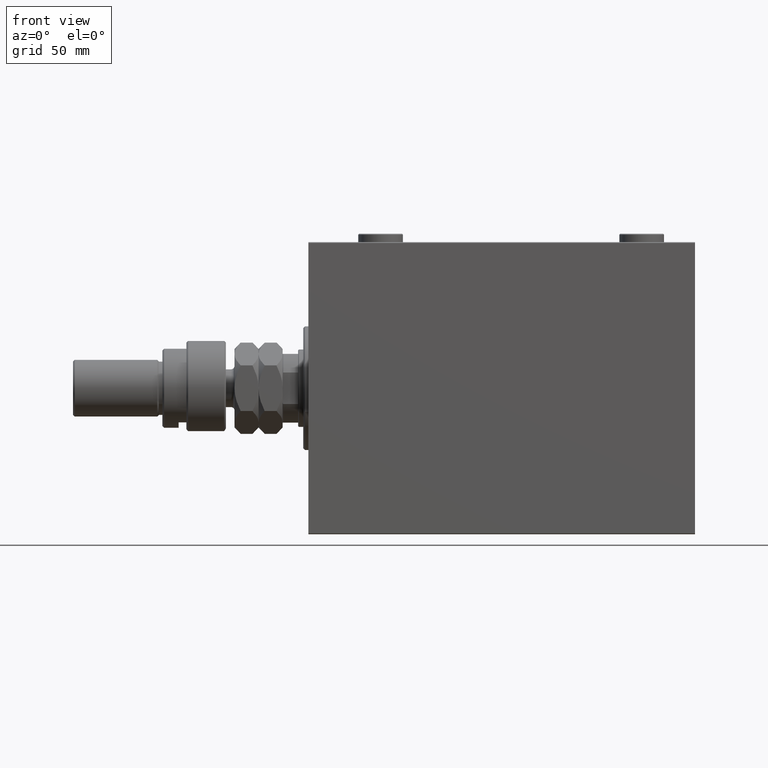
[diagram: clean part render]
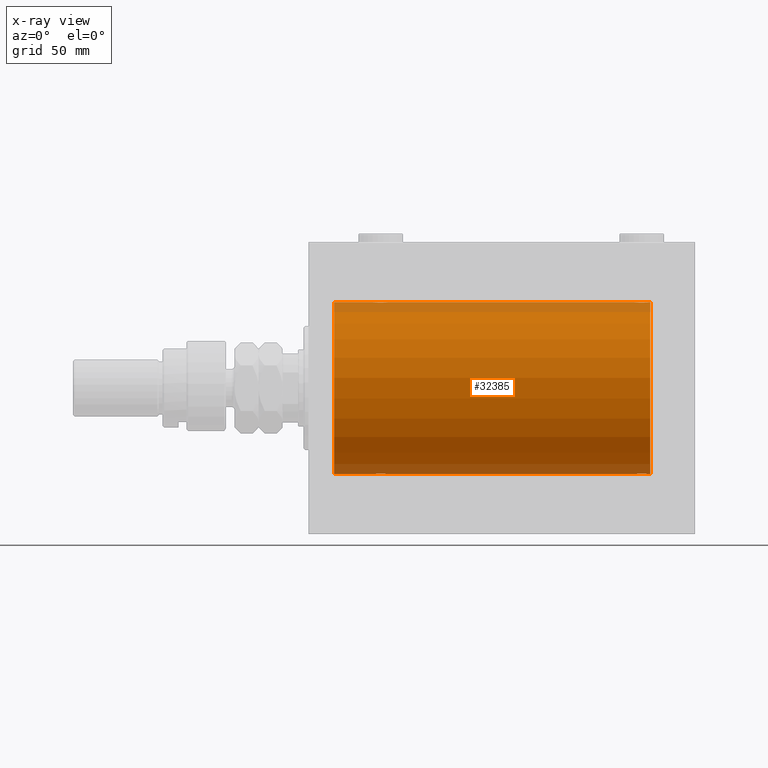
[diagram: x-ray — body ghosted, one internal face saturated and labeled with its STEP entity id]
A machine part, front view, then the same camera in x-ray: the body is ghosted and one INTERNAL B-rep face — a face not visible from any outside direction — is saturated and labeled: STEP entity #32385.
In plain terms, the highlighted cylindrical surface (partial cylindrical patch) has radius 50 mm, axis along (-1, -0, -0).
Its self-contained STEP definition (entity closure, byte-faithful):
#140 = CARTESIAN_POINT ( 'NONE',  ( 195.3671064755457678, -4.033756670430855173, 49.83713703490974467 ) ) ;
#160 = CARTESIAN_POINT ( 'NONE',  ( 38.62480015918035292, -2.597781786597455067, -49.93300953359122474 ) ) ;
#259 = CARTESIAN_POINT ( 'NONE',  ( 38.79696438048011942, -2.807099414226279510, 49.92152599098507437 ) ) ;
#504 = CARTESIAN_POINT ( 'NONE',  ( 45.68602832121950286, -2.133925816755177785, 49.95498245321557107 ) ) ;
#1246 = ORIENTED_EDGE ( 'NONE', *, *, #11767, .T. ) ;
#1705 = CARTESIAN_POINT ( 'NONE',  ( 46.25000000000000000, 3.663389736015513070E-16, 50.00000000000000000 ) ) ;
#1777 = CARTESIAN_POINT ( 'NONE',  ( 196.1313639944615375, -3.687400765141540582, -49.86408552998298660 ) ) ;
#2021 = CARTESIAN_POINT ( 'NONE',  ( 197.3788171726373832, -2.593114840406129495, -49.93325460257641879 ) ) ;
#2035 = CARTESIAN_POINT ( 'NONE',  ( 199.0000000000000000, 0.000000000000000000, 50.00000000000000000 ) ) ;
#2122 = B_SPLINE_CURVE_WITH_KNOTS ( 'NONE', 3,
 ( #18443, #7470, #37237, #36996, #37717, #7707, #34066, #44565, #8197, #22347, #3814, #23074, #37965, #48224, #11126, #30151, #19409, #3575, #29911, #34310, #11606, #15022, #33337, #44805, #10888, #14783, #160, #45043, #11369, #26490, #41374, #7945, #22821, #42114 ),
 .UNSPECIFIED., .F., .F.,
 ( 4, 2, 2, 2, 2, 2, 2, 2, 2, 2, 2, 2, 2, 2, 2, 2, 4 ),
 ( 0.01329343152928757349, 0.01412407817529635554, 0.01495472482130513932, 0.01578537146731392310, 0.01661601811332270515, 0.01744666475933148719, 0.01827731140534026924, 0.01910795805134905129, 0.01993860469735783680, 0.02076925134336661885, 0.02159989798937540090, 0.02243054463538418294, 0.02326119128139296499, 0.02409183792740174704, 0.02492248457341052909, 0.02575313121941931460, 0.02658377786542809665 ),
 .UNSPECIFIED. ) ;
#2187 = CARTESIAN_POINT ( 'NONE',  ( 46.03079796155343928, -1.375411031076042789, 49.98173289062309266 ) ) ;
#2265 = CARTESIAN_POINT ( 'NONE',  ( 196.5931272088595563, -3.378657745070634100, -49.88595615988430154 ) ) ;
#2781 = CARTESIAN_POINT ( 'NONE',  ( 198.2500000000000000, 6.123233970934497231E-15, -50.00000000000000000 ) ) ;
#3443 = CARTESIAN_POINT ( 'NONE',  ( 15.00000000000001421, 6.123233995736766085E-15, -50.00000000000000000 ) ) ;
#3453 = ORIENTED_EDGE ( 'NONE', *, *, #26762, .F. ) ;
#3575 = CARTESIAN_POINT ( 'NONE',  ( 41.72275072962082021, -4.250219976861628446, -49.81902879621016211 ) ) ;
#3678 = CARTESIAN_POINT ( 'NONE',  ( 44.12631644875080639, -3.690299572754720536, 49.86386974736160482 ) ) ;
#3791 = CARTESIAN_POINT ( 'NONE',  ( 193.4400213230435384, -4.222042462213130953, 49.82145436824653473 ) ) ;
#3814 = CARTESIAN_POINT ( 'NONE',  ( 44.59312720885954917, -3.378657745070611895, -49.88595615988430154 ) ) ;
#4026 = CARTESIAN_POINT ( 'NONE',  ( 190.7969643804800910, -2.807099414226295053, 49.92152599098504595 ) ) ;
#4146 = CARTESIAN_POINT ( 'NONE',  ( 43.09737617879038396, -4.115209769591109179, 49.83039196709101759 ) ) ;
#4147 = ORIENTED_EDGE ( 'NONE', *, *, #21107, .T. ) ;
#4267 = CARTESIAN_POINT ( 'NONE',  ( 190.3106284432061841, -2.128188802142376712, 49.95522967821975158 ) ) ;
#4395 = CARTESIAN_POINT ( 'NONE',  ( 39.18846933484581996, -3.199146701881674382, 49.89793607725462010 ) ) ;
#4782 = ORIENTED_EDGE ( 'NONE', *, *, #31790, .T. ) ;
#5063 = DIRECTION ( 'NONE',  ( -1.000000000000000000, 0.000000000000000000, 0.000000000000000000 ) ) ;
#5204 = CARTESIAN_POINT ( 'NONE',  ( 189.9692020384465536, -1.375411031076053447, -49.98173289062309976 ) ) ;
#5218 = DIRECTION ( 'NONE',  ( -1.000000000000000000, -0.000000000000000000, -0.000000000000000000 ) ) ;
#5672 = CARTESIAN_POINT ( 'NONE',  ( 198.2500000000000284, -0.2773743941468493346, -50.00000000000000711 ) ) ;
#5772 = EDGE_CURVE ( 'NONE', #33673, #42123, #22853, .T. ) ;
#5776 = CARTESIAN_POINT ( 'NONE',  ( 199.0000000000000000, 0.000000000000000000, 0.000000000000000000 ) ) ;
#6267 = VERTEX_POINT ( 'NONE', #22435 ) ;
#7199 = CARTESIAN_POINT ( 'NONE',  ( 196.5882021467620291, -3.382416624899781343, 49.88570010427955737 ) ) ;
#7331 = CARTESIAN_POINT ( 'NONE',  ( 41.71604712973302043, -4.249777379711404457, 49.81906655360197789 ) ) ;
#7448 = CARTESIAN_POINT ( 'NONE',  ( 192.8967670396579024, -4.113647494206492894, 49.83052139214893117 ) ) ;
#7470 = CARTESIAN_POINT ( 'NONE',  ( 46.25000000000000711, -0.2773743941468470586, -50.00000000000000711 ) ) ;
#7571 = CARTESIAN_POINT ( 'NONE',  ( 37.77689247200999745, -0.5531336717329055075, 49.99769193709644099 ) ) ;
#7693 = CARTESIAN_POINT ( 'NONE',  ( 199.0000000000000000, 6.123233995736766085E-15, -50.00000000000000000 ) ) ;
#7707 = CARTESIAN_POINT ( 'NONE',  ( 45.82100581985224608, -1.881229021238117749, -49.96525240872482954 ) ) ;
#7716 = VERTEX_POINT ( 'NONE', #38539 ) ;
#7808 = CARTESIAN_POINT ( 'NONE',  ( 38.17899418014773261, -1.881229021238126631, 49.96525240872482954 ) ) ;
#7921 = CARTESIAN_POINT ( 'NONE',  ( 189.7768924720100188, -0.5531336717329069508, 49.99769193709643389 ) ) ;
#7923 = DIRECTION ( 'NONE',  ( -1.000000000000000000, -0.000000000000000000, -0.000000000000000000 ) ) ;
#7945 = CARTESIAN_POINT ( 'NONE',  ( 37.77757364479219149, -0.5587117664567073927, -49.99763378604802000 ) ) ;
#8197 = CARTESIAN_POINT ( 'NONE',  ( 45.20303561951989479, -2.807099414226266632, -49.92152599098507437 ) ) ;
#8280 = CARTESIAN_POINT ( 'NONE',  ( 199.0000000000000000, 6.123233995736766085E-15, -50.00000000000000000 ) ) ;
#8301 = B_SPLINE_CURVE_WITH_KNOTS ( 'NONE', 3,
 ( #14885, #19516, #7571, #15361, #34409, #7808, #29770, #41236, #259, #4395, #15125, #41004, #15847, #22683, #45143, #40757, #7331, #44665, #37578, #4146, #22208, #19027, #3678, #11705, #11228, #26121, #33926, #504, #23913, #2187, #12925, #19754, #9496, #1705 ),
 .UNSPECIFIED., .F., .F.,
 ( 4, 2, 2, 2, 2, 2, 2, 2, 2, 2, 2, 2, 2, 2, 2, 2, 4 ),
 ( 0.01329343152928756135, 0.01412407817529634513, 0.01495472482130512891, 0.01578537146731391269, 0.01661601811332269474, 0.01744666475933148025, 0.01827731140534026577, 0.01910795805134905129, 0.01993860469735783680, 0.02076925134336661885, 0.02159989798937540437, 0.02243054463538418988, 0.02326119128139297193, 0.02409183792740175745, 0.02492248457341054296, 0.02575313121941932848, 0.02658377786542811400 ),
 .UNSPECIFIED. ) ;
#8620 = CARTESIAN_POINT ( 'NONE',  ( 195.3733343657903845, -4.031616700143205279, -49.83731072121799599 ) ) ;
#8857 = CARTESIAN_POINT ( 'NONE',  ( 192.6328935244542606, -4.033756670430864943, -49.83713703490974467 ) ) ;
#9106 = CARTESIAN_POINT ( 'NONE',  ( 190.3139716787804332, -2.133925816755195992, -49.95498245321557818 ) ) ;
#9496 = CARTESIAN_POINT ( 'NONE',  ( 46.25000000000002132, -0.2808785465865649700, 50.00000000000000711 ) ) ;
#9569 = CARTESIAN_POINT ( 'NONE',  ( 192.9026238212096303, -4.115209769591121614, -49.83039196709102470 ) ) ;
#10632 = CARTESIAN_POINT ( 'NONE',  ( 196.1263164487508277, -3.690299572754723201, 49.86386974736159772 ) ) ;
#10730 = ORIENTED_EDGE ( 'NONE', *, *, #26237, .F. ) ;
#10888 = CARTESIAN_POINT ( 'NONE',  ( 39.19302168160690769, -3.203153387937303087, -49.89767833571684008 ) ) ;
#11126 = CARTESIAN_POINT ( 'NONE',  ( 43.10323296034215446, -4.113647494206469801, -49.83052139214892406 ) ) ;
#11228 = CARTESIAN_POINT ( 'NONE',  ( 44.80697831839309231, -3.203153387937317298, 49.89767833571684008 ) ) ;
#11369 = CARTESIAN_POINT ( 'NONE',  ( 38.18160751012128884, -1.886522330773408695, -49.96505190380065642 ) ) ;
#11606 = CARTESIAN_POINT ( 'NONE',  ( 40.63289352445425351, -4.033756670430834745, -49.83713703490973757 ) ) ;
#11705 = CARTESIAN_POINT ( 'NONE',  ( 44.58820214676200067, -3.382416624899780011, 49.88570010427955737 ) ) ;
#11767 = EDGE_CURVE ( 'NONE', #37961, #33673, #32352, .T. ) ;
#12519 = CARTESIAN_POINT ( 'NONE',  ( 195.1032329603422113, -4.113647494206493782, -49.83052139214891696 ) ) ;
#12524 = CARTESIAN_POINT ( 'NONE',  ( 199.0000000000000000, 0.000000000000000000, 0.000000000000000000 ) ) ;
#12756 = CARTESIAN_POINT ( 'NONE',  ( 196.8115306651542369, -3.199146701881677934, -49.89793607725460589 ) ) ;
#12899 = DIRECTION ( 'NONE',  ( -1.000000000000000000, -0.000000000000000000, -0.000000000000000000 ) ) ;
#12925 = CARTESIAN_POINT ( 'NONE',  ( 46.11249701080335939, -1.108337267831489337, 49.98846998601261760 ) ) ;
#12935 = VERTEX_POINT ( 'NONE', #16776 ) ;
#12997 = CARTESIAN_POINT ( 'NONE',  ( 189.7775736447921986, -0.5587117664567311515, -49.99763378604802000 ) ) ;
#13557 = DIRECTION ( 'NONE',  ( -1.000000000000000000, 0.000000000000000000, 0.000000000000000000 ) ) ;
#14274 = CARTESIAN_POINT ( 'NONE',  ( 190.6211828273626452, -2.593114840406140598, 49.93325460257639747 ) ) ;
#14522 = CARTESIAN_POINT ( 'NONE',  ( 189.9672735790269087, -1.369753890039665301, 49.98188917176553048 ) ) ;
#14760 = CARTESIAN_POINT ( 'NONE',  ( 191.8686360055384057, -3.687400765141532588, 49.86408552998298660 ) ) ;
#14783 = CARTESIAN_POINT ( 'NONE',  ( 38.80078072038718062, -2.811461347331092320, -49.92127983148853332 ) ) ;
#14885 = CARTESIAN_POINT ( 'NONE',  ( 37.75000000000000711, -2.480770331693776875E-23, 50.00000000000000000 ) ) ;
#15022 = CARTESIAN_POINT ( 'NONE',  ( 40.11782950515556934, -3.820681512513366851, -49.85392475515399724 ) ) ;
#15125 = CARTESIAN_POINT ( 'NONE',  ( 39.40687279114045793, -3.378657745070626106, 49.88595615988430154 ) ) ;
#15238 = CARTESIAN_POINT ( 'NONE',  ( 189.7500000000000000, -2.480257572105383217E-23, 50.00000000000000000 ) ) ;
#15240 = LINE ( 'NONE', #42090, #27369 ) ;
#15361 = CARTESIAN_POINT ( 'NONE',  ( 37.88568086693991432, -1.101350136471744623, 49.98862054280448319 ) ) ;
#15509 = ORIENTED_EDGE ( 'NONE', *, *, #22775, .T. ) ;
#15847 = CARTESIAN_POINT ( 'NONE',  ( 40.11255260607202189, -3.818052230167719774, 49.85412671291930309 ) ) ;
#15873 = ORIENTED_EDGE ( 'NONE', *, *, #37489, .T. ) ;
#16176 = CARTESIAN_POINT ( 'NONE',  ( 198.2231075279900097, -0.5531336717329021768, -49.99769193709643389 ) ) ;
#16655 = CARTESIAN_POINT ( 'NONE',  ( 190.8007807203871664, -2.811461347331121186, -49.92127983148852621 ) ) ;
#16776 = CARTESIAN_POINT ( 'NONE',  ( 46.25000000000000000, 3.663389736015513070E-16, 50.00000000000000000 ) ) ;
#16898 = CARTESIAN_POINT ( 'NONE',  ( 194.5599786769564901, -4.222042462213138947, -49.82145436824653473 ) ) ;
#17136 = CARTESIAN_POINT ( 'NONE',  ( 190.6248001591803245, -2.597781786597481712, -49.93300953359122474 ) ) ;
#17142 = DIRECTION ( 'NONE',  ( -1.000000000000000000, -0.000000000000000000, -0.000000000000000000 ) ) ;
#17294 = VECTOR ( 'NONE', #12899, 1000.000000000000000 ) ;
#17991 = AXIS2_PLACEMENT_3D ( 'NONE', #12524, #17142, #24719 ) ;
#18156 = AXIS2_PLACEMENT_3D ( 'NONE', #47001, #13557, #24554 ) ;
#18420 = CARTESIAN_POINT ( 'NONE',  ( 197.3751998408197323, -2.597781786597469278, 49.93300953359122474 ) ) ;
#18443 = CARTESIAN_POINT ( 'NONE',  ( 46.25000000000000000, 6.123233970928975205E-15, -50.00000000000000000 ) ) ;
#18559 = B_SPLINE_CURVE_WITH_KNOTS ( 'NONE', 3,
 ( #15238, #34041, #7921, #37693, #14522, #22799, #4267, #14274, #4026, #30129, #48201, #14760, #45020, #41348, #7448, #3791, #29884, #29166, #47967, #44075, #140, #40876, #10632, #7199, #25521, #18660, #18420, #33312, #40405, #29405, #44784, #22078, #41115, #29644 ),
 .UNSPECIFIED., .F., .F.,
 ( 4, 2, 2, 2, 2, 2, 2, 2, 2, 2, 2, 2, 2, 2, 2, 2, 4 ),
 ( 0.01329343152928759257, 0.01412407817529637809, 0.01495472482130516534, 0.01578537146731395086, 0.01661601811332273637, 0.01744666475933152189, 0.01827731140534030740, 0.01910795805134909292, 0.01993860469735787844, 0.02076925134336666048, 0.02159989798937544947, 0.02243054463538423499, 0.02326119128139302050, 0.02409183792740180602, 0.02492248457341059154, 0.02575313121941937705, 0.02658377786542816257 ),
 .UNSPECIFIED. ) ;
#18660 = CARTESIAN_POINT ( 'NONE',  ( 197.1992192796127767, -2.811461347331109639, 49.92127983148851911 ) ) ;
#19027 = CARTESIAN_POINT ( 'NONE',  ( 43.88217049484444487, -3.820681512513380618, 49.85392475515401856 ) ) ;
#19409 = CARTESIAN_POINT ( 'NONE',  ( 42.28395287026697247, -4.249777379711388470, -49.81906655360197789 ) ) ;
#19516 = CARTESIAN_POINT ( 'NONE',  ( 37.74999999999999289, -0.2773743941468543306, 50.00000000000000000 ) ) ;
#19754 = CARTESIAN_POINT ( 'NONE',  ( 46.22242635520781562, -0.5587117664567134989, 49.99763378604802710 ) ) ;
#19836 = CARTESIAN_POINT ( 'NONE',  ( 198.2500000000000000, 6.123233970934497231E-15, -50.00000000000000000 ) ) ;
#20083 = CARTESIAN_POINT ( 'NONE',  ( 191.1930216816069219, -3.203153387937335062, -49.89767833571684008 ) ) ;
#20217 = LINE ( 'NONE', #8280, #17294 ) ;
#20262 = VECTOR ( 'NONE', #35081, 1000.000000000000000 ) ;
#20335 = ORIENTED_EDGE ( 'NONE', *, *, #5772, .T. ) ;
#20551 = CARTESIAN_POINT ( 'NONE',  ( 197.8210058198523313, -1.881229021238119969, -49.96525240872482954 ) ) ;
#20702 = B_SPLINE_CURVE_WITH_KNOTS ( 'NONE', 3,
 ( #19836, #5672, #16176, #35692, #45955, #20551, #31298, #2021, #46198, #12756, #2265, #1777, #42049, #8620, #12519, #16898, #42544, #27401, #42294, #9569, #8857, #23746, #31541, #27643, #20083, #16655, #17136, #9106, #38634, #5204, #24221, #12997, #31781, #42781 ),
 .UNSPECIFIED., .F., .F.,
 ( 4, 2, 2, 2, 2, 2, 2, 2, 2, 2, 2, 2, 2, 2, 2, 2, 4 ),
 ( 0.01329343152928758216, 0.01412407817529636768, 0.01495472482130515320, 0.01578537146731394045, 0.01661601811332272596, 0.01744666475933151148, 0.01827731140534029700, 0.01910795805134908251, 0.01993860469735786803, 0.02076925134336665354, 0.02159989798937544253, 0.02243054463538422805, 0.02326119128139301356, 0.02409183792740179908, 0.02492248457341058460, 0.02575313121941937011, 0.02658377786542815563 ),
 .UNSPECIFIED. ) ;
#20867 = VERTEX_POINT ( 'NONE', #29249 ) ;
#20992 = VECTOR ( 'NONE', #26831, 1000.000000000000000 ) ;
#21107 = EDGE_CURVE ( 'NONE', #7716, #12935, #8301, .T. ) ;
#22078 = CARTESIAN_POINT ( 'NONE',  ( 198.2224263552077730, -0.5587117664567127218, 49.99763378604802710 ) ) ;
#22208 = CARTESIAN_POINT ( 'NONE',  ( 43.36710647554575360, -4.033756670430848068, 49.83713703490974467 ) ) ;
#22347 = CARTESIAN_POINT ( 'NONE',  ( 44.81153066515420136, -3.199146701881660171, -49.89793607725462010 ) ) ;
#22435 = CARTESIAN_POINT ( 'NONE',  ( 46.25000000000000000, 6.123233970928975205E-15, -50.00000000000000000 ) ) ;
#22674 = CARTESIAN_POINT ( 'NONE',  ( 199.0000000000000000, 0.000000000000000000, 50.00000000000000000 ) ) ;
#22683 = CARTESIAN_POINT ( 'NONE',  ( 40.62666563420964394, -4.031616700143185739, 49.83731072121799599 ) ) ;
#22775 = EDGE_CURVE ( 'NONE', #6267, #37961, #2122, .T. ) ;
#22799 = CARTESIAN_POINT ( 'NONE',  ( 190.1789941801477539, -1.881229021238137955, 49.96525240872482243 ) ) ;
#22821 = CARTESIAN_POINT ( 'NONE',  ( 37.75000000000001421, -0.2808785465865586972, -50.00000000000001421 ) ) ;
#22853 = CIRCLE ( 'NONE', #18156, 50.00000000000000000 ) ;
#23074 = CARTESIAN_POINT ( 'NONE',  ( 44.13136399446156588, -3.687400765141517045, -49.86408552998297239 ) ) ;
#23746 = CARTESIAN_POINT ( 'NONE',  ( 192.1178295051555835, -3.820681512513397937, -49.85392475515401145 ) ) ;
#23913 = CARTESIAN_POINT ( 'NONE',  ( 45.81839248987872537, -1.886522330773416911, 49.96505190380066352 ) ) ;
#24221 = CARTESIAN_POINT ( 'NONE',  ( 189.8875029891966619, -1.108337267831509543, -49.98846998601261760 ) ) ;
#24554 = DIRECTION ( 'NONE',  ( 0.000000000000000000, 0.000000000000000000, 1.000000000000000000 ) ) ;
#24719 = DIRECTION ( 'NONE',  ( 0.000000000000000000, 0.000000000000000000, 1.000000000000000000 ) ) ;
#24727 = LINE ( 'NONE', #2035, #39739 ) ;
#24821 = LINE ( 'NONE', #27510, #20262 ) ;
#25521 = CARTESIAN_POINT ( 'NONE',  ( 196.8069783183931065, -3.203153387937324847, 49.89767833571684719 ) ) ;
#25826 = VERTEX_POINT ( 'NONE', #26174 ) ;
#25895 = CARTESIAN_POINT ( 'NONE',  ( 189.7500000000000000, -2.480257572105383217E-23, 50.00000000000000000 ) ) ;
#26113 = LINE ( 'NONE', #22674, #20992 ) ;
#26121 = CARTESIAN_POINT ( 'NONE',  ( 45.19921927961281938, -2.811461347331102534, 49.92127983148851911 ) ) ;
#26174 = CARTESIAN_POINT ( 'NONE',  ( 189.7500000000000000, -1.477075025308699456E-14, -50.00000000000000000 ) ) ;
#26237 = EDGE_CURVE ( 'NONE', #43148, #12935, #26113, .T. ) ;
#26490 = CARTESIAN_POINT ( 'NONE',  ( 37.96920203844656783, -1.375411031076034130, -49.98173289062310687 ) ) ;
#26762 = EDGE_CURVE ( 'NONE', #33054, #20867, #31170, .T. ) ;
#26831 = DIRECTION ( 'NONE',  ( -1.000000000000000000, -0.000000000000000000, -0.000000000000000000 ) ) ;
#27028 = EDGE_CURVE ( 'NONE', #7716, #42123, #24727, .T. ) ;
#27369 = VECTOR ( 'NONE', #7923, 1000.000000000000000 ) ;
#27401 = CARTESIAN_POINT ( 'NONE',  ( 193.7227507296208273, -4.250219976861660420, -49.81902879621013369 ) ) ;
#27510 = CARTESIAN_POINT ( 'NONE',  ( 199.0000000000000000, 6.123233995736766085E-15, -50.00000000000000000 ) ) ;
#27643 = CARTESIAN_POINT ( 'NONE',  ( 191.4117978532380278, -3.382416624899811097, -49.88570010427955737 ) ) ;
#28121 = CYLINDRICAL_SURFACE ( 'NONE', #17991, 50.00000000000000000 ) ;
#28692 = CARTESIAN_POINT ( 'NONE',  ( 198.2500000000000000, 3.264238863893571870E-15, 50.00000000000000000 ) ) ;
#29166 = CARTESIAN_POINT ( 'NONE',  ( 194.2772492703792580, -4.250219976861652427, 49.81902879621016211 ) ) ;
#29249 = CARTESIAN_POINT ( 'NONE',  ( 199.0000000000000000, 0.000000000000000000, 50.00000000000000000 ) ) ;
#29405 = CARTESIAN_POINT ( 'NONE',  ( 198.0307979615535032, -1.375411031076037682, 49.98173289062309266 ) ) ;
#29644 = CARTESIAN_POINT ( 'NONE',  ( 198.2500000000000000, 3.264238863893571870E-15, 50.00000000000000000 ) ) ;
#29770 = CARTESIAN_POINT ( 'NONE',  ( 38.31062844320614147, -2.128188802142366054, 49.95522967821974447 ) ) ;
#29884 = CARTESIAN_POINT ( 'NONE',  ( 193.7160471297329991, -4.249777379711411562, 49.81906655360197078 ) ) ;
#29911 = CARTESIAN_POINT ( 'NONE',  ( 41.44591435119851752, -4.222816005855191790, -49.82138837911247720 ) ) ;
#29926 = EDGE_CURVE ( 'NONE', #20867, #46279, #15240, .T. ) ;
#30129 = CARTESIAN_POINT ( 'NONE',  ( 191.1884693348458768, -3.199146701881688148, 49.89793607725461300 ) ) ;
#30151 = CARTESIAN_POINT ( 'NONE',  ( 42.55997867695646164, -4.222042462213109637, -49.82145436824654183 ) ) ;
#30220 = EDGE_CURVE ( 'NONE', #25826, #6267, #24821, .T. ) ;
#31170 = CIRCLE ( 'NONE', #34314, 50.00000000000000000 ) ;
#31298 = CARTESIAN_POINT ( 'NONE',  ( 197.6893715567939012, -2.128188802142362945, -49.95522967821975158 ) ) ;
#31541 = CARTESIAN_POINT ( 'NONE',  ( 191.8736835512492291, -3.690299572754748958, -49.86386974736159061 ) ) ;
#31781 = CARTESIAN_POINT ( 'NONE',  ( 189.7500000000000568, -0.2808785465865829556, -50.00000000000001421 ) ) ;
#31790 = EDGE_CURVE ( 'NONE', #36951, #25826, #20702, .T. ) ;
#32352 = LINE ( 'NONE', #47959, #40220 ) ;
#32385 = ADVANCED_FACE ( 'NONE', ( #43269 ), #28121, .F. ) ;
#32967 = CARTESIAN_POINT ( 'NONE',  ( 15.00000000000001421, 0.000000000000000000, 50.00000000000000000 ) ) ;
#33054 = VERTEX_POINT ( 'NONE', #7693 ) ;
#33312 = CARTESIAN_POINT ( 'NONE',  ( 197.6860283212195100, -2.133925816755183114, 49.95498245321557107 ) ) ;
#33337 = CARTESIAN_POINT ( 'NONE',  ( 39.87368355124921493, -3.690299572754706325, -49.86386974736159772 ) ) ;
#33673 = VERTEX_POINT ( 'NONE', #3443 ) ;
#33926 = CARTESIAN_POINT ( 'NONE',  ( 45.37519984081966840, -2.597781786597463061, 49.93300953359122474 ) ) ;
#34041 = CARTESIAN_POINT ( 'NONE',  ( 189.7500000000000284, -0.2773743941468547192, 50.00000000000000711 ) ) ;
#34066 = CARTESIAN_POINT ( 'NONE',  ( 45.68937155679385853, -2.128188802142354508, -49.95522967821975158 ) ) ;
#34310 = CARTESIAN_POINT ( 'NONE',  ( 40.90262382120962315, -4.115209769591094968, -49.83039196709103891 ) ) ;
#34314 = AXIS2_PLACEMENT_3D ( 'NONE', #5776, #5063, #42649 ) ;
#34409 = CARTESIAN_POINT ( 'NONE',  ( 37.96727357902688738, -1.369753890039653310, 49.98188917176553048 ) ) ;
#35081 = DIRECTION ( 'NONE',  ( -1.000000000000000000, -0.000000000000000000, -0.000000000000000000 ) ) ;
#35692 = CARTESIAN_POINT ( 'NONE',  ( 198.1143191330600644, -1.101350136471741070, -49.98862054280448319 ) ) ;
#36185 = EDGE_CURVE ( 'NONE', #33054, #36951, #20217, .T. ) ;
#36625 = ORIENTED_EDGE ( 'NONE', *, *, #30220, .T. ) ;
#36951 = VERTEX_POINT ( 'NONE', #2781 ) ;
#36996 = CARTESIAN_POINT ( 'NONE',  ( 46.11431913306007147, -1.101350136471736407, -49.98862054280446898 ) ) ;
#37237 = CARTESIAN_POINT ( 'NONE',  ( 46.22310752799001676, -0.5531336717328987351, -49.99769193709645521 ) ) ;
#37489 = EDGE_CURVE ( 'NONE', #43148, #46279, #18559, .T. ) ;
#37578 = CARTESIAN_POINT ( 'NONE',  ( 42.55408564880149669, -4.222816005855206889, 49.82138837911247009 ) ) ;
#37693 = CARTESIAN_POINT ( 'NONE',  ( 189.8856808669399925, -1.101350136471745955, 49.98862054280449740 ) ) ;
#37717 = CARTESIAN_POINT ( 'NONE',  ( 46.03272642097310552, -1.369753890039644872, -49.98188917176551627 ) ) ;
#37961 = VERTEX_POINT ( 'NONE', #43478 ) ;
#37965 = CARTESIAN_POINT ( 'NONE',  ( 43.88744739392799943, -3.818052230167706007, -49.85412671291931730 ) ) ;
#38025 = ORIENTED_EDGE ( 'NONE', *, *, #27028, .F. ) ;
#38045 = ORIENTED_EDGE ( 'NONE', *, *, #36185, .T. ) ;
#38539 = CARTESIAN_POINT ( 'NONE',  ( 37.75000000000000711, -2.480770331693776875E-23, 50.00000000000000000 ) ) ;
#38634 = CARTESIAN_POINT ( 'NONE',  ( 190.1816075101212675, -1.886522330773430234, -49.96505190380066352 ) ) ;
#38650 = EDGE_LOOP ( 'NONE', ( #3453, #38045, #4782, #36625, #15509, #1246, #20335, #38025, #4147, #10730, #15873, #41757 ) ) ;
#39739 = VECTOR ( 'NONE', #5218, 1000.000000000000000 ) ;
#40158 = DIRECTION ( 'NONE',  ( -1.000000000000000000, -0.000000000000000000, -0.000000000000000000 ) ) ;
#40220 = VECTOR ( 'NONE', #40158, 1000.000000000000000 ) ;
#40405 = CARTESIAN_POINT ( 'NONE',  ( 197.8183924898787609, -1.886522330773414913, 49.96505190380066352 ) ) ;
#40757 = CARTESIAN_POINT ( 'NONE',  ( 41.44002132304352415, -4.222042462213121183, 49.82145436824653473 ) ) ;
#40876 = CARTESIAN_POINT ( 'NONE',  ( 195.8821704948445017, -3.820681512513387723, 49.85392475515400434 ) ) ;
#41004 = CARTESIAN_POINT ( 'NONE',  ( 39.86863600553844833, -3.687400765141530812, 49.86408552998298660 ) ) ;
#41115 = CARTESIAN_POINT ( 'NONE',  ( 198.2500000000000000, -0.2808785465865640818, 50.00000000000000711 ) ) ;
#41236 = CARTESIAN_POINT ( 'NONE',  ( 38.62118282736263097, -2.593114840406129940, 49.93325460257640458 ) ) ;
#41348 = CARTESIAN_POINT ( 'NONE',  ( 192.6266656342096724, -4.031616700143195509, 49.83731072121800310 ) ) ;
#41374 = CARTESIAN_POINT ( 'NONE',  ( 37.88750298919665482, -1.108337267831482009, -49.98846998601261760 ) ) ;
#41757 = ORIENTED_EDGE ( 'NONE', *, *, #29926, .F. ) ;
#42049 = CARTESIAN_POINT ( 'NONE',  ( 195.8874473939279994, -3.818052230167738870, -49.85412671291929598 ) ) ;
#42090 = CARTESIAN_POINT ( 'NONE',  ( 199.0000000000000000, 0.000000000000000000, 50.00000000000000000 ) ) ;
#42114 = CARTESIAN_POINT ( 'NONE',  ( 37.75000000000000711, 3.968053759906218216E-15, -50.00000000000000000 ) ) ;
#42123 = VERTEX_POINT ( 'NONE', #32967 ) ;
#42294 = CARTESIAN_POINT ( 'NONE',  ( 193.4459143511985246, -4.222816005855223764, -49.82138837911247009 ) ) ;
#42544 = CARTESIAN_POINT ( 'NONE',  ( 194.2839528702670009, -4.249777379711420444, -49.81906655360197789 ) ) ;
#42649 = DIRECTION ( 'NONE',  ( 0.000000000000000000, 0.000000000000000000, 1.000000000000000000 ) ) ;
#42781 = CARTESIAN_POINT ( 'NONE',  ( 189.7500000000000000, -1.477075025308699456E-14, -50.00000000000000000 ) ) ;
#43148 = VERTEX_POINT ( 'NONE', #25895 ) ;
#43269 = FACE_OUTER_BOUND ( 'NONE', #38650, .T. ) ;
#43478 = CARTESIAN_POINT ( 'NONE',  ( 37.75000000000000711, 3.968053759906218216E-15, -50.00000000000000000 ) ) ;
#44075 = CARTESIAN_POINT ( 'NONE',  ( 195.0973761787903982, -4.115209769591111844, 49.83039196709102470 ) ) ;
#44565 = CARTESIAN_POINT ( 'NONE',  ( 45.37881717263738324, -2.593114840406115729, -49.93325460257640458 ) ) ;
#44665 = CARTESIAN_POINT ( 'NONE',  ( 42.27724927037918690, -4.250219976861641769, 49.81902879621012659 ) ) ;
#44784 = CARTESIAN_POINT ( 'NONE',  ( 198.1124970108033949, -1.108337267831489781, 49.98846998601262470 ) ) ;
#44805 = CARTESIAN_POINT ( 'NONE',  ( 39.41179785323798512, -3.382416624899766244, -49.88570010427955026 ) ) ;
#45020 = CARTESIAN_POINT ( 'NONE',  ( 192.1125526060720290, -3.818052230167728656, 49.85412671291929598 ) ) ;
#45043 = CARTESIAN_POINT ( 'NONE',  ( 38.31397167878049714, -2.133925816755172455, -49.95498245321557818 ) ) ;
#45143 = CARTESIAN_POINT ( 'NONE',  ( 40.89676703965784554, -4.113647494206482236, 49.83052139214891696 ) ) ;
#45955 = CARTESIAN_POINT ( 'NONE',  ( 198.0327264209731482, -1.369753890039646427, -49.98188917176553048 ) ) ;
#46198 = CARTESIAN_POINT ( 'NONE',  ( 197.2030356195199374, -2.807099414226280842, -49.92152599098506727 ) ) ;
#46279 = VERTEX_POINT ( 'NONE', #28692 ) ;
#47001 = CARTESIAN_POINT ( 'NONE',  ( 15.00000000000001421, 0.000000000000000000, 0.000000000000000000 ) ) ;
#47959 = CARTESIAN_POINT ( 'NONE',  ( 199.0000000000000000, 6.123233995736766085E-15, -50.00000000000000000 ) ) ;
#47967 = CARTESIAN_POINT ( 'NONE',  ( 194.5540856488015606, -4.222816005855213994, 49.82138837911248430 ) ) ;
#48201 = CARTESIAN_POINT ( 'NONE',  ( 191.4068727911404437, -3.378657745070624330, 49.88595615988430154 ) ) ;
#48224 = CARTESIAN_POINT ( 'NONE',  ( 43.37333436579038448, -4.031616700143171528, -49.83731072121799599 ) ) ;